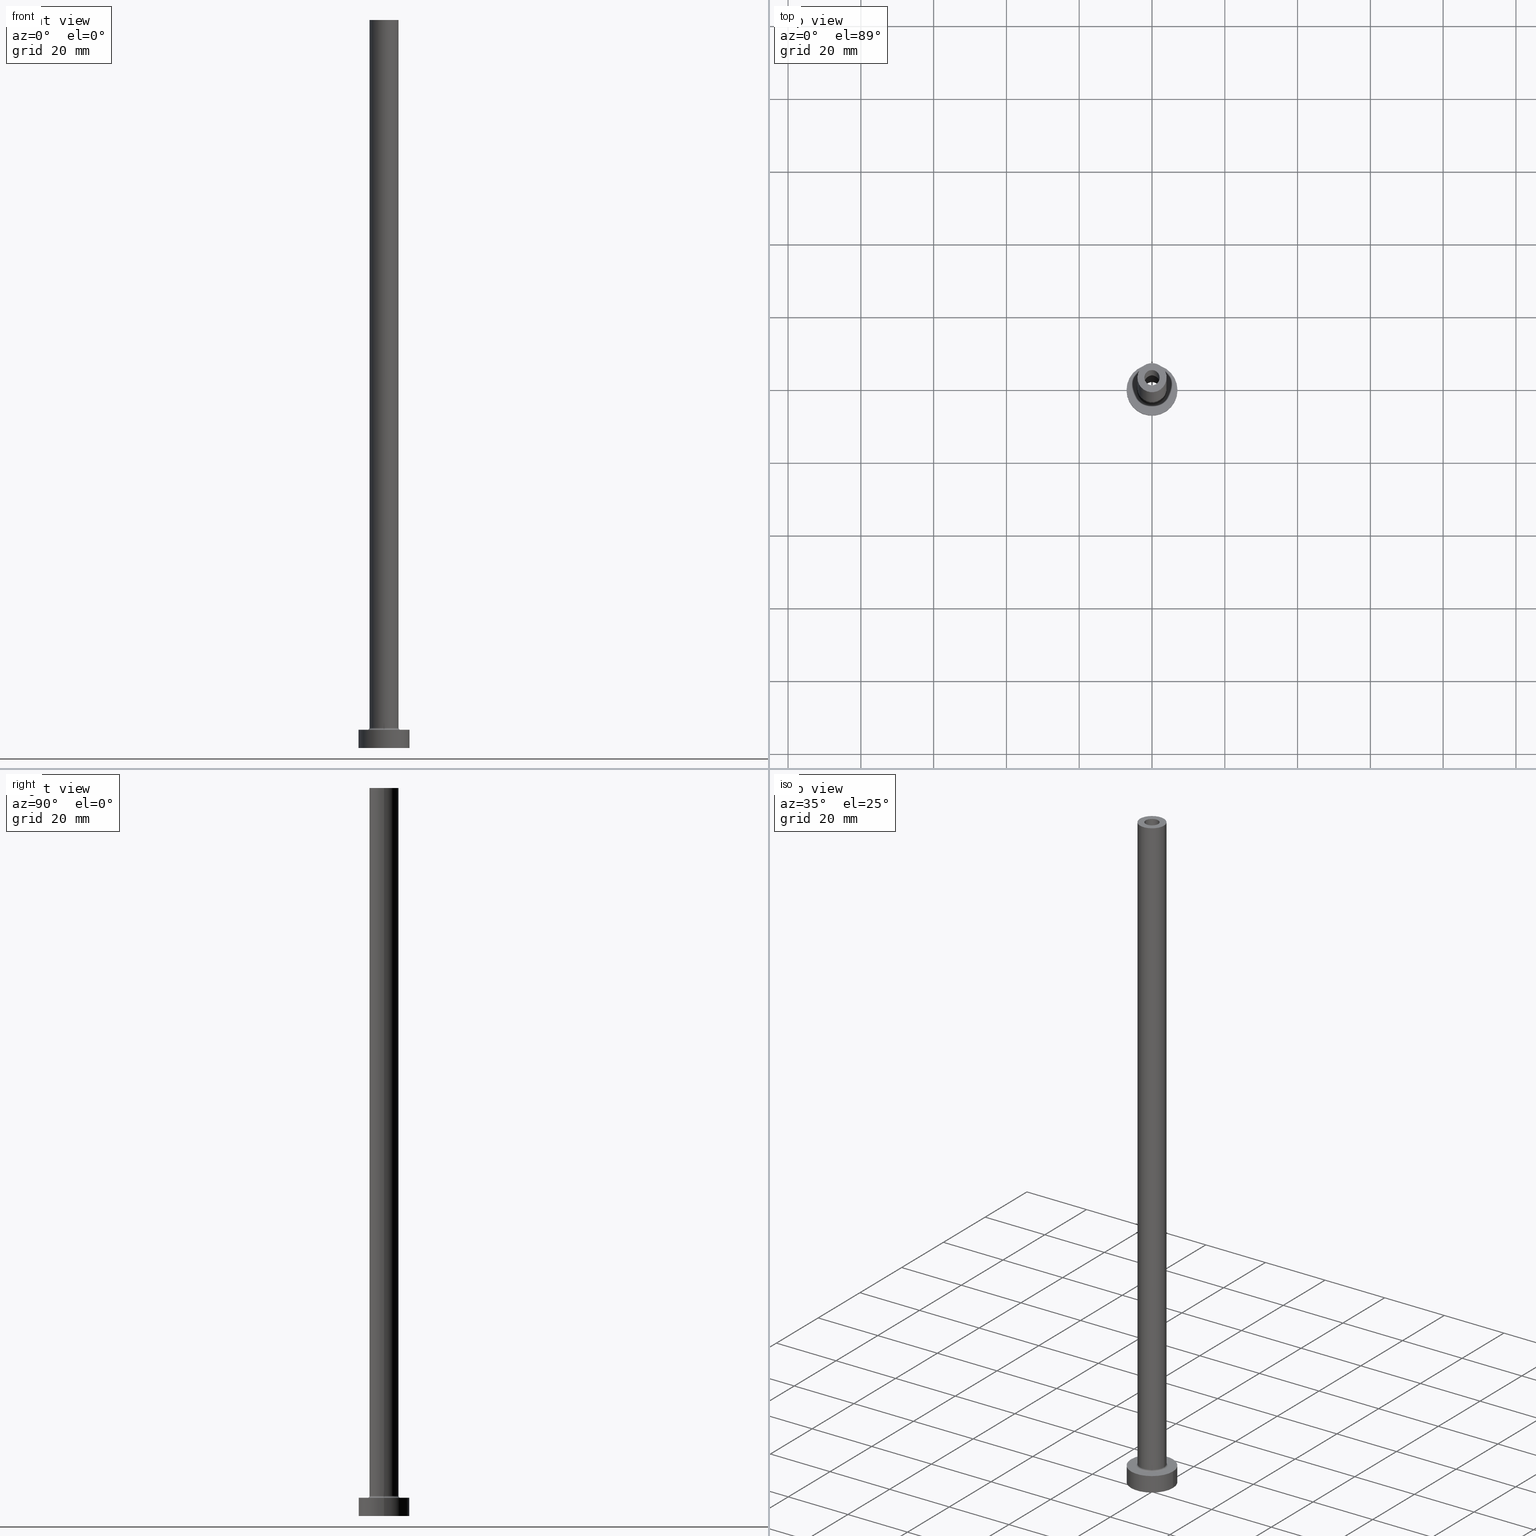
[diagram: canonical four-view strip — front | top / right | iso, engineering-drawing reading convention]
A machine part, canonical four-view strip (front | top / right | iso — engineering-drawing reading convention). The complete STEP part file that produces these views, byte-faithful:
ISO-10303-21;
HEADER;
FILE_DESCRIPTION (( 'STEP AP203' ),
    '1' );
FILE_NAME ('9bbc.STEP',
    '2023-02-13T17:32:44',
    ( '' ),
    ( '' ),
    'SwSTEP 2.0',
    'SolidWorks 2019',
    '' );
FILE_SCHEMA (( 'CONFIG_CONTROL_DESIGN' ));
ENDSEC;

DATA;
#1 = PERSON_AND_ORGANIZATION_ROLE ( 'creator' ) ;
#2 = ORIENTED_EDGE ( 'NONE', *, *, #325, .F. ) ;
#3 = TOROIDAL_SURFACE ( 'NONE', #64, 4.500000000000000888, 0.5000000000000000000 ) ;
#4 = EDGE_LOOP ( 'NONE', ( #425, #5, #120, #322 ) ) ;
#5 = ORIENTED_EDGE ( 'NONE', *, *, #42, .T. ) ;
#6 = ADVANCED_FACE ( 'NONE', ( #92, #384 ), #77, .T. ) ;
#7 = AXIS2_PLACEMENT_3D ( 'NONE', #248, #61, #237 ) ;
#8 = ORIENTED_EDGE ( 'NONE', *, *, #270, .F. ) ;
#9 = SHAPE_DEFINITION_REPRESENTATION ( #233, #378 ) ;
#10 = AXIS2_PLACEMENT_3D ( 'NONE', #173, #401, #250 ) ;
#11 = EDGE_CURVE ( 'NONE', #335, #71, #447, .T. ) ;
#12 = AXIS2_PLACEMENT_3D ( 'NONE', #114, #231, #23 ) ;
#13 = APPROVAL_DATE_TIME ( #448, #265 ) ;
#14 = FACE_OUTER_BOUND ( 'NONE', #456, .T. ) ;
#15 = CIRCLE ( 'NONE', #402, 2.100000000000000089 ) ;
#16 = CARTESIAN_POINT ( 'NONE',  ( -4.500000000000000888, 5.510910596163089556E-16, 5.500000000000005329 ) ) ;
#17 = COORDINATED_UNIVERSAL_TIME_OFFSET ( 1, 0, .AHEAD. ) ;
#18 = DIRECTION ( 'NONE',  ( 0.000000000000000000, 0.000000000000000000, -1.000000000000000000 ) ) ;
#19 = APPROVAL ( #179, 'NEUR�EN�' ) ;
#20 = DIRECTION ( 'NONE',  ( 0.000000000000000000, 0.000000000000000000, 1.000000000000000000 ) ) ;
#21 = CALENDAR_DATE ( 2023, 13, 2 ) ;
#22 = EDGE_LOOP ( 'NONE', ( #347, #200, #438, #283 ) ) ;
#23 = DIRECTION ( 'NONE',  ( 1.000000000000000000, 0.000000000000000000, -0.000000000000000000 ) ) ;
#24 = DIRECTION ( 'NONE',  ( -1.000000000000000000, 0.000000000000000000, 0.000000000000000000 ) ) ;
#25 = DIRECTION ( 'NONE',  ( 0.000000000000000000, 0.000000000000000000, -1.000000000000000000 ) ) ;
#26 = ORIENTED_EDGE ( 'NONE', *, *, #80, .F. ) ;
#27 = CARTESIAN_POINT ( 'NONE',  ( 0.000000000000000000, 0.000000000000000000, 200.0000000000000000 ) ) ;
#28 = EDGE_CURVE ( 'NONE', #424, #202, #319, .T. ) ;
#29 = VECTOR ( 'NONE', #18, 1000.000000000000000 ) ;
#30 = VERTEX_POINT ( 'NONE', #63 ) ;
#31 = PERSON ( 'NEUR�EN�', 'NEUR�EN�', 'NEUR�EN�', ('NEUR�EN�'), ('NEUR�EN�'), ('NEUR�EN�') ) ;
#32 = ORIENTED_EDGE ( 'NONE', *, *, #139, .T. ) ;
#33 = PERSON_AND_ORGANIZATION_ROLE ( 'design_supplier' ) ;
#34 = DIRECTION ( 'NONE',  ( 0.000000000000000000, 0.000000000000000000, 1.000000000000000000 ) ) ;
#35 =( NAMED_UNIT ( * ) PLANE_ANGLE_UNIT ( ) SI_UNIT ( $, .RADIAN. ) );
#36 = AXIS2_PLACEMENT_3D ( 'NONE', #85, #313, #152 ) ;
#37 = EDGE_CURVE ( 'NONE', #204, #202, #211, .T. ) ;
#38 = COORDINATED_UNIVERSAL_TIME_OFFSET ( 1, 0, .AHEAD. ) ;
#39 = EDGE_LOOP ( 'NONE', ( #396, #74, #32, #243 ) ) ;
#40 = FACE_OUTER_BOUND ( 'NONE', #273, .T. ) ;
#41 = PERSON_AND_ORGANIZATION ( #31, #155 ) ;
#42 = EDGE_CURVE ( 'NONE', #412, #103, #235, .T. ) ;
#43 = APPLICATION_CONTEXT ( 'configuration controlled 3d designs of mechanical parts and assemblies' ) ;
#44 = LOCAL_TIME ( 18, 32, 44.00000000000000000, #105 ) ;
#45 = COORDINATED_UNIVERSAL_TIME_OFFSET ( 1, 0, .AHEAD. ) ;
#46 = APPROVAL_DATE_TIME ( #368, #19 ) ;
#47 = FACE_OUTER_BOUND ( 'NONE', #60, .T. ) ;
#48 = CC_DESIGN_PERSON_AND_ORGANIZATION_ASSIGNMENT ( #216, #255, ( #91 ) ) ;
#49 = CARTESIAN_POINT ( 'NONE',  ( 0.000000000000000000, 0.000000000000000000, 200.0000000000000000 ) ) ;
#50 = AXIS2_PLACEMENT_3D ( 'NONE', #398, #380, #354 ) ;
#51 = LOCAL_TIME ( 18, 32, 44.00000000000000000, #45 ) ;
#52 = ORIENTED_EDGE ( 'NONE', *, *, #28, .T. ) ;
#53 = CARTESIAN_POINT ( 'NONE',  ( 0.000000000000000000, 0.000000000000000000, 0.000000000000000000 ) ) ;
#54 = PRODUCT ( '9bbc', '9bbc', '', ( #432 ) ) ;
#55 = EDGE_CURVE ( 'NONE', #192, #103, #203, .T. ) ;
#56 = ORIENTED_EDGE ( 'NONE', *, *, #397, .T. ) ;
#57 = DIRECTION ( 'NONE',  ( -0.000000000000000000, -0.000000000000000000, -1.000000000000000000 ) ) ;
#58 = EDGE_LOOP ( 'NONE', ( #266, #449 ) ) ;
#59 = DIRECTION ( 'NONE',  ( -1.000000000000000000, 0.000000000000000000, 0.000000000000000000 ) ) ;
#60 = EDGE_LOOP ( 'NONE', ( #56, #296 ) ) ;
#61 = DIRECTION ( 'NONE',  ( -0.000000000000000000, -0.000000000000000000, -1.000000000000000000 ) ) ;
#62 = ADVANCED_FACE ( 'NONE', ( #201 ), #3, .F. ) ;
#63 = CARTESIAN_POINT ( 'NONE',  ( -4.000000000000000000, 0.000000000000000000, 200.0000000000000000 ) ) ;
#64 = AXIS2_PLACEMENT_3D ( 'NONE', #337, #156, #242 ) ;
#65 = EDGE_LOOP ( 'NONE', ( #239, #52, #254, #217 ) ) ;
#66 = CYLINDRICAL_SURFACE ( 'NONE', #36, 4.000000000000000000 ) ;
#67 = AXIS2_PLACEMENT_3D ( 'NONE', #247, #413, #381 ) ;
#68 = DIRECTION ( 'NONE',  ( 0.000000000000000000, 0.000000000000000000, 1.000000000000000000 ) ) ;
#69 = VERTEX_POINT ( 'NONE', #346 ) ;
#70 = EDGE_CURVE ( 'NONE', #412, #279, #267, .T. ) ;
#71 = VERTEX_POINT ( 'NONE', #158 ) ;
#72 = CIRCLE ( 'NONE', #338, 2.100000000000000089 ) ;
#73 = LOCAL_TIME ( 18, 32, 44.00000000000000000, #17 ) ;
#74 = ORIENTED_EDGE ( 'NONE', *, *, #397, .F. ) ;
#75 = ADVANCED_FACE ( 'NONE', ( #240 ), #118, .F. ) ;
#76 = DIRECTION ( 'NONE',  ( 0.000000000000000000, 0.000000000000000000, 1.000000000000000000 ) ) ;
#77 = PLANE ( 'NONE',  #375 ) ;
#78 = AXIS2_PLACEMENT_3D ( 'NONE', #82, #191, #442 ) ;
#79 = PERSON_AND_ORGANIZATION_ROLE ( 'design_owner' ) ;
#80 = EDGE_CURVE ( 'NONE', #329, #279, #282, .T. ) ;
#81 = DIRECTION ( 'NONE',  ( 1.000000000000000000, 0.000000000000000000, 0.000000000000000000 ) ) ;
#82 = CARTESIAN_POINT ( 'NONE',  ( 0.000000000000000000, 0.000000000000000000, 5.000000000000000000 ) ) ;
#83 = PLANE ( 'NONE',  #355 ) ;
#84 = AXIS2_PLACEMENT_3D ( 'NONE', #389, #207, #98 ) ;
#85 = CARTESIAN_POINT ( 'NONE',  ( 0.000000000000000000, 0.000000000000000000, 200.0000000000000000 ) ) ;
#86 = ADVANCED_FACE ( 'NONE', ( #125 ), #421, .F. ) ;
#87 = CARTESIAN_POINT ( 'NONE',  ( 0.000000000000000000, 0.000000000000000000, 200.0000000000000000 ) ) ;
#88 = ORIENTED_EDGE ( 'NONE', *, *, #439, .T. ) ;
#89 = FACE_OUTER_BOUND ( 'NONE', #246, .T. ) ;
#90 = AXIS2_PLACEMENT_3D ( 'NONE', #268, #117, #269 ) ;
#91 = SECURITY_CLASSIFICATION ( '', '', #290 ) ;
#92 = FACE_BOUND ( 'NONE', #176, .T. ) ;
#93 = CARTESIAN_POINT ( 'NONE',  ( 4.000000000000000000, 4.898587196589412829E-16, 200.0000000000000000 ) ) ;
#94 = CARTESIAN_POINT ( 'NONE',  ( 0.000000000000000000, 0.000000000000000000, 161.3639610306789507 ) ) ;
#95 = DIRECTION ( 'NONE',  ( 1.000000000000000000, 0.000000000000000000, -0.000000000000000000 ) ) ;
#96 = AXIS2_PLACEMENT_3D ( 'NONE', #127, #154, #59 ) ;
#97 = DATE_AND_TIME ( #287, #44 ) ;
#98 = DIRECTION ( 'NONE',  ( 1.000000000000000000, 0.000000000000000000, 0.000000000000000000 ) ) ;
#99 = DIRECTION ( 'NONE',  ( 1.000000000000000000, 0.000000000000000000, 0.000000000000000000 ) ) ;
#100 = EDGE_CURVE ( 'NONE', #30, #412, #316, .T. ) ;
#101 = DIRECTION ( 'NONE',  ( -1.000000000000000000, 0.000000000000000000, 0.000000000000000000 ) ) ;
#102 = ORIENTED_EDGE ( 'NONE', *, *, #100, .F. ) ;
#103 = VERTEX_POINT ( 'NONE', #299 ) ;
#104 = EDGE_CURVE ( 'NONE', #335, #294, #387, .T. ) ;
#105 = COORDINATED_UNIVERSAL_TIME_OFFSET ( 1, 0, .AHEAD. ) ;
#106 = DIRECTION ( 'NONE',  ( -0.000000000000000000, -0.000000000000000000, -1.000000000000000000 ) ) ;
#107 = ORIENTED_EDGE ( 'NONE', *, *, #100, .T. ) ;
#108 = CARTESIAN_POINT ( 'NONE',  ( 0.000000000000000000, 0.000000000000000000, 155.0000000000000284 ) ) ;
#109 = CALENDAR_DATE ( 2023, 13, 2 ) ;
#110 = EDGE_CURVE ( 'NONE', #279, #412, #428, .T. ) ;
#111 = ORIENTED_EDGE ( 'NONE', *, *, #151, .T. ) ;
#112 = DIRECTION ( 'NONE',  ( 1.000000000000000000, 0.000000000000000000, 0.000000000000000000 ) ) ;
#113 = EDGE_CURVE ( 'NONE', #424, #311, #367, .T. ) ;
#114 = CARTESIAN_POINT ( 'NONE',  ( 0.000000000000000000, 0.000000000000000000, 155.0000000000000284 ) ) ;
#115 = CIRCLE ( 'NONE', #408, 4.500000000000000888 ) ;
#116 = APPROVAL_PERSON_ORGANIZATION ( #364, #19, #437 ) ;
#117 = DIRECTION ( 'NONE',  ( 0.000000000000000000, -1.000000000000000000, 0.000000000000000000 ) ) ;
#118 = CYLINDRICAL_SURFACE ( 'NONE', #153, 2.250000000000000000 ) ;
#119 = APPROVAL_ROLE ( '' ) ;
#120 = ORIENTED_EDGE ( 'NONE', *, *, #55, .F. ) ;
#121 = DIRECTION ( 'NONE',  ( 0.000000000000000000, 0.000000000000000000, 1.000000000000000000 ) ) ;
#122 = CYLINDRICAL_SURFACE ( 'NONE', #96, 4.000000000000000000 ) ;
#123 = DIRECTION ( 'NONE',  ( -0.000000000000000000, -0.000000000000000000, -1.000000000000000000 ) ) ;
#124 = CC_DESIGN_PERSON_AND_ORGANIZATION_ASSIGNMENT ( #143, #33, ( #403 ) ) ;
#125 = FACE_OUTER_BOUND ( 'NONE', #410, .T. ) ;
#126 = ORIENTED_EDGE ( 'NONE', *, *, #42, .F. ) ;
#127 = CARTESIAN_POINT ( 'NONE',  ( 0.000000000000000000, 0.000000000000000000, 200.0000000000000000 ) ) ;
#128 = AXIS2_PLACEMENT_3D ( 'NONE', #365, #68, #251 ) ;
#129 = CC_DESIGN_APPROVAL ( #265, ( #91 ) ) ;
#130 = EDGE_LOOP ( 'NONE', ( #26, #431, #107, #445 ) ) ;
#131 = CARTESIAN_POINT ( 'NONE',  ( 0.000000000000000000, 0.000000000000000000, 0.000000000000000000 ) ) ;
#132 = CARTESIAN_POINT ( 'NONE',  ( 0.000000000000000000, 0.000000000000000000, 5.000000000000000000 ) ) ;
#133 = EDGE_LOOP ( 'NONE', ( #111, #327 ) ) ;
#134 = CARTESIAN_POINT ( 'NONE',  ( 0.000000000000000000, 0.000000000000000000, 161.3639610306789507 ) ) ;
#135 = ORIENTED_EDGE ( 'NONE', *, *, #113, .F. ) ;
#136 = CARTESIAN_POINT ( 'NONE',  ( 0.000000000000000000, 0.000000000000000000, 5.000000000000000000 ) ) ;
#137 = DIRECTION ( 'NONE',  ( 1.000000000000000000, 0.000000000000000000, 0.000000000000000000 ) ) ;
#138 = DIRECTION ( 'NONE',  ( -0.000000000000000000, -0.000000000000000000, -1.000000000000000000 ) ) ;
#139 = EDGE_CURVE ( 'NONE', #294, #69, #150, .T. ) ;
#140 = CIRCLE ( 'NONE', #185, 2.250000000000000000 ) ;
#141 = ORIENTED_EDGE ( 'NONE', *, *, #187, .F. ) ;
#142 = LOCAL_TIME ( 18, 32, 44.00000000000000000, #38 ) ;
#143 = PERSON_AND_ORGANIZATION ( #31, #155 ) ;
#144 = ADVANCED_FACE ( 'NONE', ( #261 ), #305, .T. ) ;
#145 = EDGE_LOOP ( 'NONE', ( #220, #342, #386, #286 ) ) ;
#146 = DIRECTION ( 'NONE',  ( -0.000000000000000000, -0.000000000000000000, -1.000000000000000000 ) ) ;
#147 = CARTESIAN_POINT ( 'NONE',  ( 2.100000000000000089, 2.571758278209441464E-16, 200.0000000000000000 ) ) ;
#148 = DIRECTION ( 'NONE',  ( 1.000000000000000000, 0.000000000000000000, -0.000000000000000000 ) ) ;
#149 = APPROVAL_PERSON_ORGANIZATION ( #264, #222, #430 ) ;
#150 = LINE ( 'NONE', #172, #257 ) ;
#151 = EDGE_CURVE ( 'NONE', #394, #324, #15, .T. ) ;
#152 = DIRECTION ( 'NONE',  ( -1.000000000000000000, 0.000000000000000000, 0.000000000000000000 ) ) ;
#153 = AXIS2_PLACEMENT_3D ( 'NONE', #134, #25, #443 ) ;
#154 = DIRECTION ( 'NONE',  ( -0.000000000000000000, -0.000000000000000000, -1.000000000000000000 ) ) ;
#155 = ORGANIZATION ( 'NEUR�EN�', 'NEUR�EN�', '' ) ;
#156 = DIRECTION ( 'NONE',  ( 0.000000000000000000, 0.000000000000000000, 1.000000000000000000 ) ) ;
#157 = CARTESIAN_POINT ( 'NONE',  ( 2.250000000000000000, 2.755455298081544285E-16, 0.000000000000000000 ) ) ;
#158 = CARTESIAN_POINT ( 'NONE',  ( 7.000000000000000000, 8.572527594031473190E-16, 0.000000000000000000 ) ) ;
#159 = ORIENTED_EDGE ( 'NONE', *, *, #80, .T. ) ;
#160 = AXIS2_PLACEMENT_3D ( 'NONE', #131, #138, #385 ) ;
#161 = DIRECTION ( 'NONE',  ( 0.000000000000000000, 0.000000000000000000, 1.000000000000000000 ) ) ;
#162 = ORIENTED_EDGE ( 'NONE', *, *, #151, .F. ) ;
#163 = CYLINDRICAL_SURFACE ( 'NONE', #215, 2.250000000000000000 ) ;
#164 = ORIENTED_EDGE ( 'NONE', *, *, #37, .F. ) ;
#165 = ORIENTED_EDGE ( 'NONE', *, *, #167, .T. ) ;
#166 = DATE_TIME_ROLE ( 'classification_date' ) ;
#167 = EDGE_CURVE ( 'NONE', #353, #302, #72, .T. ) ;
#168 = CARTESIAN_POINT ( 'NONE',  ( 0.000000000000000000, 0.000000000000000000, 5.000000000000000000 ) ) ;
#169 = VECTOR ( 'NONE', #57, 1000.000000000000000 ) ;
#170 = ORIENTED_EDGE ( 'NONE', *, *, #433, .T. ) ;
#171 = CIRCLE ( 'NONE', #67, 7.000000000000000000 ) ;
#172 = CARTESIAN_POINT ( 'NONE',  ( -7.000000000000000000, 0.000000000000000000, 5.000000000000000000 ) ) ;
#173 = CARTESIAN_POINT ( 'NONE',  ( 0.000000000000000000, 0.000000000000000000, 0.000000000000000000 ) ) ;
#174 = PRODUCT_RELATED_PRODUCT_CATEGORY ( 'detail', '', ( #54 ) ) ;
#175 = APPROVAL_STATUS ( 'not_yet_approved' ) ;
#176 = EDGE_LOOP ( 'NONE', ( #357, #328 ) ) ;
#177 = DIRECTION ( 'NONE',  ( 1.000000000000000000, 0.000000000000000000, 0.000000000000000000 ) ) ;
#178 = DESIGN_CONTEXT ( 'detailed design', #444, 'design' ) ;
#179 = APPROVAL_STATUS ( 'not_yet_approved' ) ;
#180 = AXIS2_PLACEMENT_3D ( 'NONE', #263, #404, #81 ) ;
#181 = CALENDAR_DATE ( 2023, 13, 2 ) ;
#182 = DATE_AND_TIME ( #109, #142 ) ;
#183 = CARTESIAN_POINT ( 'NONE',  ( 4.500000000000000888, 0.000000000000000000, 5.000000000000002665 ) ) ;
#184 = CARTESIAN_POINT ( 'NONE',  ( 0.000000000000000000, 0.000000000000000000, 200.0000000000000000 ) ) ;
#185 = AXIS2_PLACEMENT_3D ( 'NONE', #417, #245, #292 ) ;
#186 = LOCAL_TIME ( 18, 32, 44.00000000000000000, #395 ) ;
#187 = EDGE_CURVE ( 'NONE', #329, #30, #227, .T. ) ;
#188 = DIRECTION ( 'NONE',  ( 1.000000000000000000, 0.000000000000000000, 0.000000000000000000 ) ) ;
#189 = FACE_BOUND ( 'NONE', #133, .T. ) ;
#190 = DIRECTION ( 'NONE',  ( 1.000000000000000000, 0.000000000000000000, 0.000000000000000000 ) ) ;
#191 = DIRECTION ( 'NONE',  ( -0.000000000000000000, -0.000000000000000000, -1.000000000000000000 ) ) ;
#192 = VERTEX_POINT ( 'NONE', #183 ) ;
#193 = CIRCLE ( 'NONE', #128, 2.100000000000000089 ) ;
#194 = FACE_OUTER_BOUND ( 'NONE', #314, .T. ) ;
#195 = CC_DESIGN_SECURITY_CLASSIFICATION ( #91, ( #403 ) ) ;
#196 = CARTESIAN_POINT ( 'NONE',  ( 4.000000000000000000, 4.898587196589412829E-16, 200.0000000000000000 ) ) ;
#197 = PERSON_AND_ORGANIZATION ( #31, #155 ) ;
#198 = EDGE_CURVE ( 'NONE', #311, #204, #232, .T. ) ;
#199 = CARTESIAN_POINT ( 'NONE',  ( 0.000000000000000000, 0.000000000000000000, 200.0000000000000000 ) ) ;
#200 = ORIENTED_EDGE ( 'NONE', *, *, #11, .T. ) ;
#201 = FACE_OUTER_BOUND ( 'NONE', #4, .T. ) ;
#202 = VERTEX_POINT ( 'NONE', #157 ) ;
#203 = CIRCLE ( 'NONE', #7, 4.500000000000000888 ) ;
#204 = VERTEX_POINT ( 'NONE', #310 ) ;
#205 = AXIS2_PLACEMENT_3D ( 'NONE', #27, #121, #137 ) ;
#206 = EDGE_CURVE ( 'NONE', #311, #424, #223, .T. ) ;
#207 = DIRECTION ( 'NONE',  ( 0.000000000000000000, 0.000000000000000000, 1.000000000000000000 ) ) ;
#208 = APPROVAL_DATE_TIME ( #97, #222 ) ;
#209 = ORIENTED_EDGE ( 'NONE', *, *, #110, .T. ) ;
#210 =( LENGTH_UNIT ( ) NAMED_UNIT ( * ) SI_UNIT ( .MILLI., .METRE. ) );
#211 = CIRCLE ( 'NONE', #160, 2.250000000000000000 ) ;
#212 = ADVANCED_FACE ( 'NONE', ( #225, #47 ), #238, .T. ) ;
#213 = DIRECTION ( 'NONE',  ( 0.000000000000000000, 0.000000000000000000, 1.000000000000000000 ) ) ;
#214 = CARTESIAN_POINT ( 'NONE',  ( 2.100000000000000089, 2.571758278209441464E-16, 155.0000000000000284 ) ) ;
#215 = AXIS2_PLACEMENT_3D ( 'NONE', #94, #285, #272 ) ;
#216 = PERSON_AND_ORGANIZATION ( #31, #155 ) ;
#217 = ORIENTED_EDGE ( 'NONE', *, *, #198, .F. ) ;
#218 = DIRECTION ( 'NONE',  ( -0.000000000000000000, -0.000000000000000000, -1.000000000000000000 ) ) ;
#219 = DIRECTION ( 'NONE',  ( 0.000000000000000000, 0.000000000000000000, -1.000000000000000000 ) ) ;
#220 = ORIENTED_EDGE ( 'NONE', *, *, #28, .F. ) ;
#221 = AXIS2_PLACEMENT_3D ( 'NONE', #277, #349, #99 ) ;
#222 = APPROVAL ( #175, 'NEUR�EN�' ) ;
#223 = CIRCLE ( 'NONE', #180, 2.250000000000000000 ) ;
#224 = CC_DESIGN_APPROVAL ( #222, ( #403 ) ) ;
#225 = FACE_BOUND ( 'NONE', #58, .T. ) ;
#226 = AXIS2_PLACEMENT_3D ( 'NONE', #16, #411, #415 ) ;
#227 = CIRCLE ( 'NONE', #332, 4.000000000000000000 ) ;
#228 = DIRECTION ( 'NONE',  ( 1.000000000000000000, 0.000000000000000000, -0.000000000000000000 ) ) ;
#229 = CARTESIAN_POINT ( 'NONE',  ( 0.000000000000000000, 0.000000000000000000, 155.0000000000000284 ) ) ;
#230 = MANIFOLD_SOLID_BREP ( 'Odebrat vysunut�m4', #369 ) ;
#231 = DIRECTION ( 'NONE',  ( 0.000000000000000000, 0.000000000000000000, 1.000000000000000000 ) ) ;
#232 = LINE ( 'NONE', #339, #29 ) ;
#233 = PRODUCT_DEFINITION_SHAPE ( 'NONE', 'NONE',  #352 ) ;
#234 = DIRECTION ( 'NONE',  ( 0.000000000000000000, 0.000000000000000000, -1.000000000000000000 ) ) ;
#235 = CIRCLE ( 'NONE', #226, 0.5000000000000004441 ) ;
#236 = FACE_OUTER_BOUND ( 'NONE', #39, .T. ) ;
#237 = DIRECTION ( 'NONE',  ( 1.000000000000000000, 0.000000000000000000, 0.000000000000000000 ) ) ;
#238 = PLANE ( 'NONE',  #293 ) ;
#239 = ORIENTED_EDGE ( 'NONE', *, *, #206, .T. ) ;
#240 = FACE_OUTER_BOUND ( 'NONE', #145, .T. ) ;
#241 = CARTESIAN_POINT ( 'NONE',  ( -2.100000000000000089, 0.000000000000000000, 155.0000000000000284 ) ) ;
#242 = DIRECTION ( 'NONE',  ( 1.000000000000000000, 0.000000000000000000, 0.000000000000000000 ) ) ;
#243 = ORIENTED_EDGE ( 'NONE', *, *, #289, .T. ) ;
#244 = EDGE_CURVE ( 'NONE', #324, #394, #193, .T. ) ;
#245 = DIRECTION ( 'NONE',  ( -0.000000000000000000, -0.000000000000000000, -1.000000000000000000 ) ) ;
#246 = EDGE_LOOP ( 'NONE', ( #452, #416, #170, #253 ) ) ;
#247 = CARTESIAN_POINT ( 'NONE',  ( 0.000000000000000000, 0.000000000000000000, 5.000000000000000000 ) ) ;
#248 = CARTESIAN_POINT ( 'NONE',  ( 0.000000000000000000, 0.000000000000000000, 5.000000000000000000 ) ) ;
#249 = CYLINDRICAL_SURFACE ( 'NONE', #436, 2.100000000000000089 ) ;
#250 = DIRECTION ( 'NONE',  ( 1.000000000000000000, 0.000000000000000000, 0.000000000000000000 ) ) ;
#251 = DIRECTION ( 'NONE',  ( 1.000000000000000000, 0.000000000000000000, 0.000000000000000000 ) ) ;
#252 = ORIENTED_EDGE ( 'NONE', *, *, #372, .T. ) ;
#253 = ORIENTED_EDGE ( 'NONE', *, *, #244, .F. ) ;
#254 = ORIENTED_EDGE ( 'NONE', *, *, #270, .T. ) ;
#255 = PERSON_AND_ORGANIZATION_ROLE ( 'classification_officer' ) ;
#256 = CARTESIAN_POINT ( 'NONE',  ( -2.250000000000000000, 0.000000000000000000, 155.0000000000000284 ) ) ;
#257 = VECTOR ( 'NONE', #106, 1000.000000000000000 ) ;
#258 = DATE_AND_TIME ( #291, #186 ) ;
#259 = CARTESIAN_POINT ( 'NONE',  ( 0.000000000000000000, 0.000000000000000000, 5.500000000000005329 ) ) ;
#260 = CARTESIAN_POINT ( 'NONE',  ( 2.100000000000000089, 2.571758278209441464E-16, 200.0000000000000000 ) ) ;
#261 = FACE_OUTER_BOUND ( 'NONE', #22, .T. ) ;
#262 = ADVANCED_FACE ( 'NONE', ( #236 ), #336, .T. ) ;
#263 = CARTESIAN_POINT ( 'NONE',  ( 0.000000000000000000, 0.000000000000000000, 155.0000000000000284 ) ) ;
#264 = PERSON_AND_ORGANIZATION ( #31, #155 ) ;
#265 = APPROVAL ( #320, 'NEUR�EN�' ) ;
#266 = ORIENTED_EDGE ( 'NONE', *, *, #55, .T. ) ;
#267 = CIRCLE ( 'NONE', #382, 4.000000000000000000 ) ;
#268 = CARTESIAN_POINT ( 'NONE',  ( 4.500000000000000888, 0.000000000000000000, 5.500000000000005329 ) ) ;
#269 = DIRECTION ( 'NONE',  ( 0.000000000000000000, 0.000000000000000000, -1.000000000000000000 ) ) ;
#270 = EDGE_CURVE ( 'NONE', #202, #204, #140, .T. ) ;
#271 = ORIENTED_EDGE ( 'NONE', *, *, #330, .F. ) ;
#272 = DIRECTION ( 'NONE',  ( -1.000000000000000000, 0.000000000000000000, 0.000000000000000000 ) ) ;
#273 = EDGE_LOOP ( 'NONE', ( #165, #383, #162, #414 ) ) ;
#274 = CIRCLE ( 'NONE', #376, 2.100000000000000089 ) ;
#275 =( GEOMETRIC_REPRESENTATION_CONTEXT ( 3 ) GLOBAL_UNCERTAINTY_ASSIGNED_CONTEXT ( ( #363 ) ) GLOBAL_UNIT_ASSIGNED_CONTEXT ( ( #210, #35, #288 ) ) REPRESENTATION_CONTEXT ( 'NONE', 'WORKASPACE' ) );
#276 = EDGE_LOOP ( 'NONE', ( #141, #159, #209, #102 ) ) ;
#277 = CARTESIAN_POINT ( 'NONE',  ( 0.000000000000000000, 0.000000000000000000, 5.500000000000005329 ) ) ;
#278 = EDGE_CURVE ( 'NONE', #302, #324, #356, .T. ) ;
#279 = VERTEX_POINT ( 'NONE', #429 ) ;
#280 = CARTESIAN_POINT ( 'NONE',  ( -4.000000000000000000, 0.000000000000000000, 5.500000000000005329 ) ) ;
#281 = DIRECTION ( 'NONE',  ( -1.000000000000000000, 0.000000000000000000, 0.000000000000000000 ) ) ;
#282 = LINE ( 'NONE', #196, #441 ) ;
#283 = ORIENTED_EDGE ( 'NONE', *, *, #139, .F. ) ;
#284 = VECTOR ( 'NONE', #146, 1000.000000000000000 ) ;
#285 = DIRECTION ( 'NONE',  ( 0.000000000000000000, 0.000000000000000000, -1.000000000000000000 ) ) ;
#286 = ORIENTED_EDGE ( 'NONE', *, *, #37, .T. ) ;
#287 = CALENDAR_DATE ( 2023, 13, 2 ) ;
#288 =( NAMED_UNIT ( * ) SI_UNIT ( $, .STERADIAN. ) SOLID_ANGLE_UNIT ( ) );
#289 = EDGE_CURVE ( 'NONE', #69, #71, #326, .T. ) ;
#290 = SECURITY_CLASSIFICATION_LEVEL ( 'unclassified' ) ;
#291 = CALENDAR_DATE ( 2023, 13, 2 ) ;
#292 = DIRECTION ( 'NONE',  ( 1.000000000000000000, 0.000000000000000000, 0.000000000000000000 ) ) ;
#293 = AXIS2_PLACEMENT_3D ( 'NONE', #168, #76, #148 ) ;
#294 = VERTEX_POINT ( 'NONE', #460 ) ;
#295 = ADVANCED_FACE ( 'NONE', ( #40 ), #249, .F. ) ;
#296 = ORIENTED_EDGE ( 'NONE', *, *, #104, .T. ) ;
#297 = DIRECTION ( 'NONE',  ( 1.000000000000000000, 0.000000000000000000, 0.000000000000000000 ) ) ;
#298 = VECTOR ( 'NONE', #418, 1000.000000000000000 ) ;
#299 = CARTESIAN_POINT ( 'NONE',  ( -4.500000000000000888, 5.510910596163088569E-16, 5.000000000000002665 ) ) ;
#300 = CC_DESIGN_PERSON_AND_ORGANIZATION_ASSIGNMENT ( #393, #1, ( #403 ) ) ;
#301 = CIRCLE ( 'NONE', #90, 0.5000000000000004441 ) ;
#302 = VERTEX_POINT ( 'NONE', #147 ) ;
#303 = LINE ( 'NONE', #440, #306 ) ;
#304 = PLANE ( 'NONE',  #12 ) ;
#305 = CYLINDRICAL_SURFACE ( 'NONE', #78, 7.000000000000000000 ) ;
#306 = VECTOR ( 'NONE', #234, 1000.000000000000000 ) ;
#307 = CC_DESIGN_PERSON_AND_ORGANIZATION_ASSIGNMENT ( #41, #79, ( #54 ) ) ;
#308 = APPROVAL_PERSON_ORGANIZATION ( #197, #265, #119 ) ;
#309 = CARTESIAN_POINT ( 'NONE',  ( 0.000000000000000000, 0.000000000000000000, 5.500000000000005329 ) ) ;
#310 = CARTESIAN_POINT ( 'NONE',  ( -2.250000000000000000, 0.000000000000000000, 0.000000000000000000 ) ) ;
#311 = VERTEX_POINT ( 'NONE', #256 ) ;
#312 = DIRECTION ( 'NONE',  ( 1.000000000000000000, 0.000000000000000000, 0.000000000000000000 ) ) ;
#313 = DIRECTION ( 'NONE',  ( -0.000000000000000000, -0.000000000000000000, -1.000000000000000000 ) ) ;
#314 = EDGE_LOOP ( 'NONE', ( #345, #2 ) ) ;
#315 = EDGE_LOOP ( 'NONE', ( #252, #340 ) ) ;
#316 = LINE ( 'NONE', #358, #284 ) ;
#317 = CIRCLE ( 'NONE', #205, 4.000000000000000000 ) ;
#318 = CARTESIAN_POINT ( 'NONE',  ( 7.000000000000000000, 8.572527594031473190E-16, 5.000000000000000000 ) ) ;
#319 = LINE ( 'NONE', #457, #298 ) ;
#320 = APPROVAL_STATUS ( 'not_yet_approved' ) ;
#321 = CARTESIAN_POINT ( 'NONE',  ( -2.100000000000000089, 0.000000000000000000, 200.0000000000000000 ) ) ;
#322 = ORIENTED_EDGE ( 'NONE', *, *, #439, .F. ) ;
#323 = CARTESIAN_POINT ( 'NONE',  ( 0.000000000000000000, 0.000000000000000000, 200.0000000000000000 ) ) ;
#324 = VERTEX_POINT ( 'NONE', #214 ) ;
#325 = EDGE_CURVE ( 'NONE', #71, #69, #454, .T. ) ;
#326 = CIRCLE ( 'NONE', #10, 7.000000000000000000 ) ;
#327 = ORIENTED_EDGE ( 'NONE', *, *, #244, .T. ) ;
#328 = ORIENTED_EDGE ( 'NONE', *, *, #360, .F. ) ;
#329 = VERTEX_POINT ( 'NONE', #93 ) ;
#330 = EDGE_CURVE ( 'NONE', #103, #192, #115, .T. ) ;
#331 = DIRECTION ( 'NONE',  ( 1.000000000000000000, 0.000000000000000000, 0.000000000000000000 ) ) ;
#332 = AXIS2_PLACEMENT_3D ( 'NONE', #49, #371, #188 ) ;
#333 = DATE_TIME_ROLE ( 'creation_date' ) ;
#334 = VECTOR ( 'NONE', #219, 1000.000000000000000 ) ;
#335 = VERTEX_POINT ( 'NONE', #318 ) ;
#336 = CYLINDRICAL_SURFACE ( 'NONE', #459, 7.000000000000000000 ) ;
#337 = CARTESIAN_POINT ( 'NONE',  ( 0.000000000000000000, 0.000000000000000000, 5.500000000000005329 ) ) ;
#338 = AXIS2_PLACEMENT_3D ( 'NONE', #87, #373, #190 ) ;
#339 = CARTESIAN_POINT ( 'NONE',  ( -2.250000000000000000, 0.000000000000000000, 161.3639610306789507 ) ) ;
#340 = ORIENTED_EDGE ( 'NONE', *, *, #187, .T. ) ;
#341 = DIRECTION ( 'NONE',  ( -0.000000000000000000, -0.000000000000000000, -1.000000000000000000 ) ) ;
#342 = ORIENTED_EDGE ( 'NONE', *, *, #113, .T. ) ;
#343 = DIRECTION ( 'NONE',  ( 0.000000000000000000, 0.000000000000000000, -1.000000000000000000 ) ) ;
#344 = CC_DESIGN_DATE_AND_TIME_ASSIGNMENT ( #258, #166, ( #91 ) ) ;
#345 = ORIENTED_EDGE ( 'NONE', *, *, #289, .F. ) ;
#346 = CARTESIAN_POINT ( 'NONE',  ( -7.000000000000000000, 0.000000000000000000, 0.000000000000000000 ) ) ;
#347 = ORIENTED_EDGE ( 'NONE', *, *, #104, .F. ) ;
#348 = AXIS2_PLACEMENT_3D ( 'NONE', #259, #362, #177 ) ;
#349 = DIRECTION ( 'NONE',  ( 0.000000000000000000, 0.000000000000000000, 1.000000000000000000 ) ) ;
#350 = DIRECTION ( 'NONE',  ( 0.000000000000000000, 0.000000000000000000, 1.000000000000000000 ) ) ;
#351 = ORIENTED_EDGE ( 'NONE', *, *, #110, .F. ) ;
#352 = PRODUCT_DEFINITION ( 'NEZN�M�', '', #403, #178 ) ;
#353 = VERTEX_POINT ( 'NONE', #321 ) ;
#354 = DIRECTION ( 'NONE',  ( 1.000000000000000000, 0.000000000000000000, 0.000000000000000000 ) ) ;
#355 = AXIS2_PLACEMENT_3D ( 'NONE', #53, #20, #228 ) ;
#356 = LINE ( 'NONE', #260, #334 ) ;
#357 = ORIENTED_EDGE ( 'NONE', *, *, #167, .F. ) ;
#358 = CARTESIAN_POINT ( 'NONE',  ( -4.000000000000000000, 0.000000000000000000, 200.0000000000000000 ) ) ;
#359 = DIRECTION ( 'NONE',  ( 1.000000000000000000, 0.000000000000000000, 0.000000000000000000 ) ) ;
#360 = EDGE_CURVE ( 'NONE', #302, #353, #274, .T. ) ;
#361 = PERSON_AND_ORGANIZATION_ROLE ( 'creator' ) ;
#362 = DIRECTION ( 'NONE',  ( 0.000000000000000000, 0.000000000000000000, 1.000000000000000000 ) ) ;
#363 = UNCERTAINTY_MEASURE_WITH_UNIT (LENGTH_MEASURE( 1.000000000000000082E-05 ), #210, 'distance_accuracy_value', 'NONE');
#364 = PERSON_AND_ORGANIZATION ( #31, #155 ) ;
#365 = CARTESIAN_POINT ( 'NONE',  ( 0.000000000000000000, 0.000000000000000000, 155.0000000000000284 ) ) ;
#366 = PERSON_AND_ORGANIZATION ( #31, #155 ) ;
#367 = CIRCLE ( 'NONE', #399, 2.250000000000000000 ) ;
#368 = DATE_AND_TIME ( #181, #51 ) ;
#369 = CLOSED_SHELL ( 'NONE', ( #295, #390, #62, #420, #144, #262, #212, #446, #426, #6, #86, #75, #455, #406 ) ) ;
#370 = AXIS2_PLACEMENT_3D ( 'NONE', #435, #427, #297 ) ;
#371 = DIRECTION ( 'NONE',  ( 0.000000000000000000, 0.000000000000000000, 1.000000000000000000 ) ) ;
#372 = EDGE_CURVE ( 'NONE', #30, #329, #317, .T. ) ;
#373 = DIRECTION ( 'NONE',  ( 0.000000000000000000, 0.000000000000000000, 1.000000000000000000 ) ) ;
#374 = FACE_OUTER_BOUND ( 'NONE', #130, .T. ) ;
#375 = AXIS2_PLACEMENT_3D ( 'NONE', #184, #350, #95 ) ;
#376 = AXIS2_PLACEMENT_3D ( 'NONE', #379, #34, #312 ) ;
#377 = CC_DESIGN_DATE_AND_TIME_ASSIGNMENT ( #182, #333, ( #352 ) ) ;
#378 = ADVANCED_BREP_SHAPE_REPRESENTATION ( '9bbc', ( #230, #84 ), #275 ) ;
#379 = CARTESIAN_POINT ( 'NONE',  ( 0.000000000000000000, 0.000000000000000000, 200.0000000000000000 ) ) ;
#380 = DIRECTION ( 'NONE',  ( 0.000000000000000000, 0.000000000000000000, 1.000000000000000000 ) ) ;
#381 = DIRECTION ( 'NONE',  ( 1.000000000000000000, 0.000000000000000000, 0.000000000000000000 ) ) ;
#382 = AXIS2_PLACEMENT_3D ( 'NONE', #309, #161, #453 ) ;
#383 = ORIENTED_EDGE ( 'NONE', *, *, #278, .T. ) ;
#384 = FACE_OUTER_BOUND ( 'NONE', #315, .T. ) ;
#385 = DIRECTION ( 'NONE',  ( 1.000000000000000000, 0.000000000000000000, 0.000000000000000000 ) ) ;
#386 = ORIENTED_EDGE ( 'NONE', *, *, #198, .T. ) ;
#387 = CIRCLE ( 'NONE', #370, 7.000000000000000000 ) ;
#388 = CYLINDRICAL_SURFACE ( 'NONE', #422, 2.100000000000000089 ) ;
#389 = CARTESIAN_POINT ( 'NONE',  ( 0.000000000000000000, 0.000000000000000000, 0.000000000000000000 ) ) ;
#390 = ADVANCED_FACE ( 'NONE', ( #423 ), #163, .F. ) ;
#391 = CARTESIAN_POINT ( 'NONE',  ( 7.000000000000000000, 8.572527594031473190E-16, 5.000000000000000000 ) ) ;
#392 = DIRECTION ( 'NONE',  ( 0.000000000000000000, 0.000000000000000000, -1.000000000000000000 ) ) ;
#393 = PERSON_AND_ORGANIZATION ( #31, #155 ) ;
#394 = VERTEX_POINT ( 'NONE', #241 ) ;
#395 = COORDINATED_UNIVERSAL_TIME_OFFSET ( 1, 0, .AHEAD. ) ;
#396 = ORIENTED_EDGE ( 'NONE', *, *, #11, .F. ) ;
#397 = EDGE_CURVE ( 'NONE', #294, #335, #171, .T. ) ;
#398 = CARTESIAN_POINT ( 'NONE',  ( 0.000000000000000000, 0.000000000000000000, 0.000000000000000000 ) ) ;
#399 = AXIS2_PLACEMENT_3D ( 'NONE', #108, #213, #331 ) ;
#400 = APPLICATION_PROTOCOL_DEFINITION ( 'international standard', 'config_control_design', 1994, #43 ) ;
#401 = DIRECTION ( 'NONE',  ( 0.000000000000000000, 0.000000000000000000, 1.000000000000000000 ) ) ;
#402 = AXIS2_PLACEMENT_3D ( 'NONE', #229, #405, #112 ) ;
#403 = PRODUCT_DEFINITION_FORMATION_WITH_SPECIFIED_SOURCE ( 'LIBOVOLN�', '', #54, .NOT_KNOWN. ) ;
#404 = DIRECTION ( 'NONE',  ( 0.000000000000000000, 0.000000000000000000, 1.000000000000000000 ) ) ;
#405 = DIRECTION ( 'NONE',  ( 0.000000000000000000, 0.000000000000000000, 1.000000000000000000 ) ) ;
#406 = ADVANCED_FACE ( 'NONE', ( #89 ), #388, .F. ) ;
#407 = FACE_BOUND ( 'NONE', #419, .T. ) ;
#408 = AXIS2_PLACEMENT_3D ( 'NONE', #136, #218, #359 ) ;
#409 = CC_DESIGN_APPROVAL ( #19, ( #352 ) ) ;
#410 = EDGE_LOOP ( 'NONE', ( #126, #351, #88, #271 ) ) ;
#411 = DIRECTION ( 'NONE',  ( 1.224646799147353207E-16, 1.000000000000000000, -0.000000000000000000 ) ) ;
#412 = VERTEX_POINT ( 'NONE', #280 ) ;
#413 = DIRECTION ( 'NONE',  ( 0.000000000000000000, 0.000000000000000000, 1.000000000000000000 ) ) ;
#414 = ORIENTED_EDGE ( 'NONE', *, *, #433, .F. ) ;
#415 = DIRECTION ( 'NONE',  ( -1.000000000000000000, 1.224646799147351482E-16, 0.000000000000000000 ) ) ;
#416 = ORIENTED_EDGE ( 'NONE', *, *, #360, .T. ) ;
#417 = CARTESIAN_POINT ( 'NONE',  ( 0.000000000000000000, 0.000000000000000000, 0.000000000000000000 ) ) ;
#418 = DIRECTION ( 'NONE',  ( 0.000000000000000000, 0.000000000000000000, -1.000000000000000000 ) ) ;
#419 = EDGE_LOOP ( 'NONE', ( #164, #8 ) ) ;
#420 = ADVANCED_FACE ( 'NONE', ( #450 ), #66, .T. ) ;
#421 = TOROIDAL_SURFACE ( 'NONE', #221, 4.500000000000000888, 0.5000000000000000000 ) ;
#422 = AXIS2_PLACEMENT_3D ( 'NONE', #199, #343, #24 ) ;
#423 = FACE_OUTER_BOUND ( 'NONE', #65, .T. ) ;
#424 = VERTEX_POINT ( 'NONE', #451 ) ;
#425 = ORIENTED_EDGE ( 'NONE', *, *, #70, .F. ) ;
#426 = ADVANCED_FACE ( 'NONE', ( #374 ), #122, .T. ) ;
#427 = DIRECTION ( 'NONE',  ( 0.000000000000000000, 0.000000000000000000, 1.000000000000000000 ) ) ;
#428 = CIRCLE ( 'NONE', #348, 4.000000000000000000 ) ;
#429 = CARTESIAN_POINT ( 'NONE',  ( 4.000000000000000000, 4.898587196589412829E-16, 5.500000000000005329 ) ) ;
#430 = APPROVAL_ROLE ( '' ) ;
#431 = ORIENTED_EDGE ( 'NONE', *, *, #372, .F. ) ;
#432 = MECHANICAL_CONTEXT ( 'NONE', #43, 'mechanical' ) ;
#433 = EDGE_CURVE ( 'NONE', #353, #394, #303, .T. ) ;
#434 = APPLICATION_PROTOCOL_DEFINITION ( 'international standard', 'config_control_design', 1994, #444 ) ;
#435 = CARTESIAN_POINT ( 'NONE',  ( 0.000000000000000000, 0.000000000000000000, 5.000000000000000000 ) ) ;
#436 = AXIS2_PLACEMENT_3D ( 'NONE', #323, #392, #101 ) ;
#437 = APPROVAL_ROLE ( '' ) ;
#438 = ORIENTED_EDGE ( 'NONE', *, *, #325, .T. ) ;
#439 = EDGE_CURVE ( 'NONE', #279, #192, #301, .T. ) ;
#440 = CARTESIAN_POINT ( 'NONE',  ( -2.100000000000000089, 0.000000000000000000, 200.0000000000000000 ) ) ;
#441 = VECTOR ( 'NONE', #341, 1000.000000000000000 ) ;
#442 = DIRECTION ( 'NONE',  ( -1.000000000000000000, 0.000000000000000000, 0.000000000000000000 ) ) ;
#443 = DIRECTION ( 'NONE',  ( -1.000000000000000000, 0.000000000000000000, 0.000000000000000000 ) ) ;
#444 = APPLICATION_CONTEXT ( 'configuration controlled 3d designs of mechanical parts and assemblies' ) ;
#445 = ORIENTED_EDGE ( 'NONE', *, *, #70, .T. ) ;
#446 = ADVANCED_FACE ( 'NONE', ( #407, #194 ), #83, .F. ) ;
#447 = LINE ( 'NONE', #391, #169 ) ;
#448 = DATE_AND_TIME ( #21, #73 ) ;
#449 = ORIENTED_EDGE ( 'NONE', *, *, #330, .T. ) ;
#450 = FACE_OUTER_BOUND ( 'NONE', #276, .T. ) ;
#451 = CARTESIAN_POINT ( 'NONE',  ( 2.250000000000000000, 2.755455298081544285E-16, 155.0000000000000284 ) ) ;
#452 = ORIENTED_EDGE ( 'NONE', *, *, #278, .F. ) ;
#453 = DIRECTION ( 'NONE',  ( 1.000000000000000000, 0.000000000000000000, 0.000000000000000000 ) ) ;
#454 = CIRCLE ( 'NONE', #50, 7.000000000000000000 ) ;
#455 = ADVANCED_FACE ( 'NONE', ( #189, #14 ), #304, .F. ) ;
#456 = EDGE_LOOP ( 'NONE', ( #458, #135 ) ) ;
#457 = CARTESIAN_POINT ( 'NONE',  ( 2.250000000000000000, 2.755455298081544285E-16, 161.3639610306789507 ) ) ;
#458 = ORIENTED_EDGE ( 'NONE', *, *, #206, .F. ) ;
#459 = AXIS2_PLACEMENT_3D ( 'NONE', #132, #123, #281 ) ;
#460 = CARTESIAN_POINT ( 'NONE',  ( -7.000000000000000000, 0.000000000000000000, 5.000000000000000000 ) ) ;
#461 = CC_DESIGN_PERSON_AND_ORGANIZATION_ASSIGNMENT ( #366, #361, ( #352 ) ) ;
ENDSEC;
END-ISO-10303-21;
